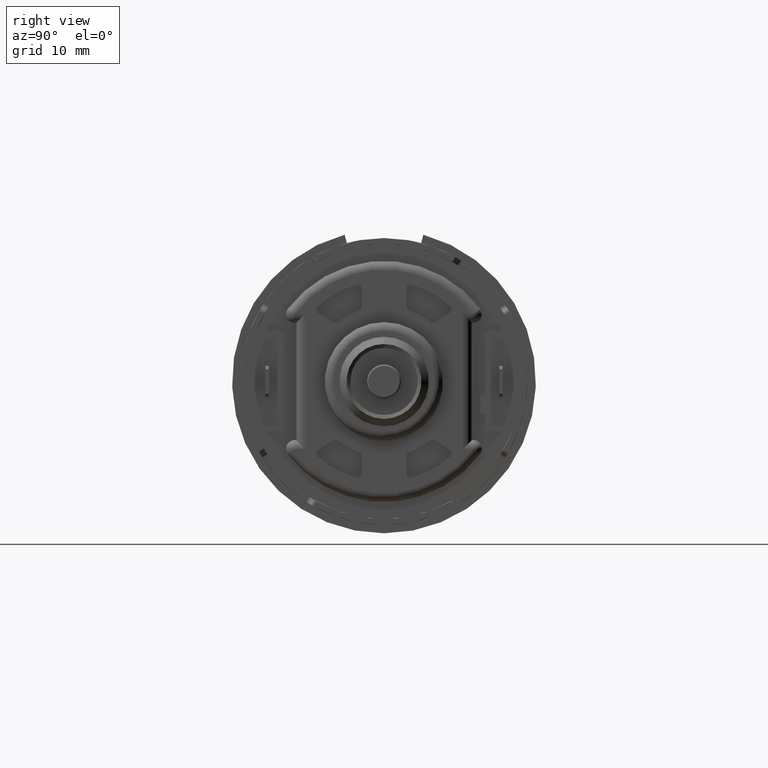
[diagram: clean part render]
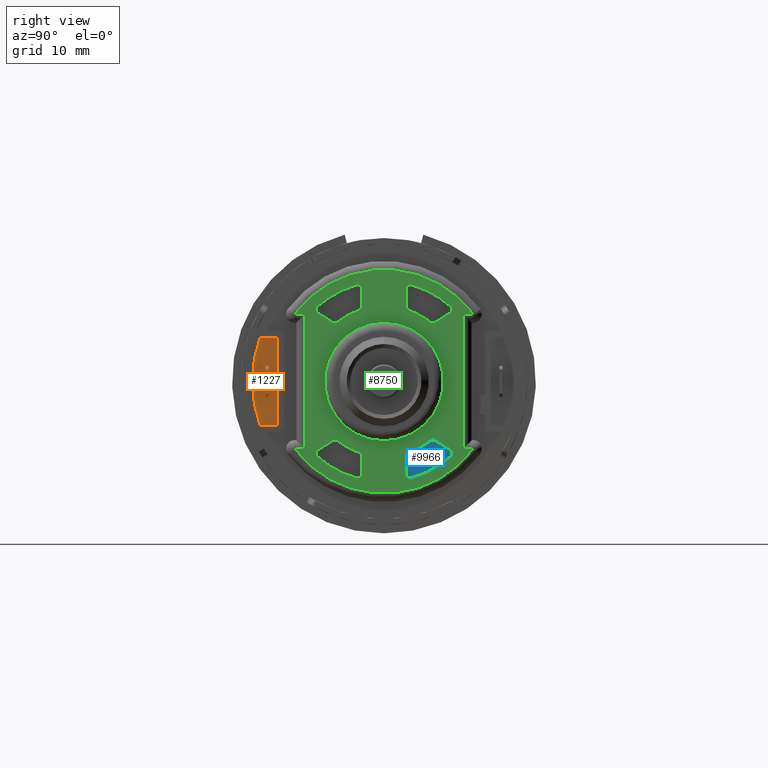
[diagram: same view with three faces highlighted in distinct colors, each labeled with its STEP entity id]
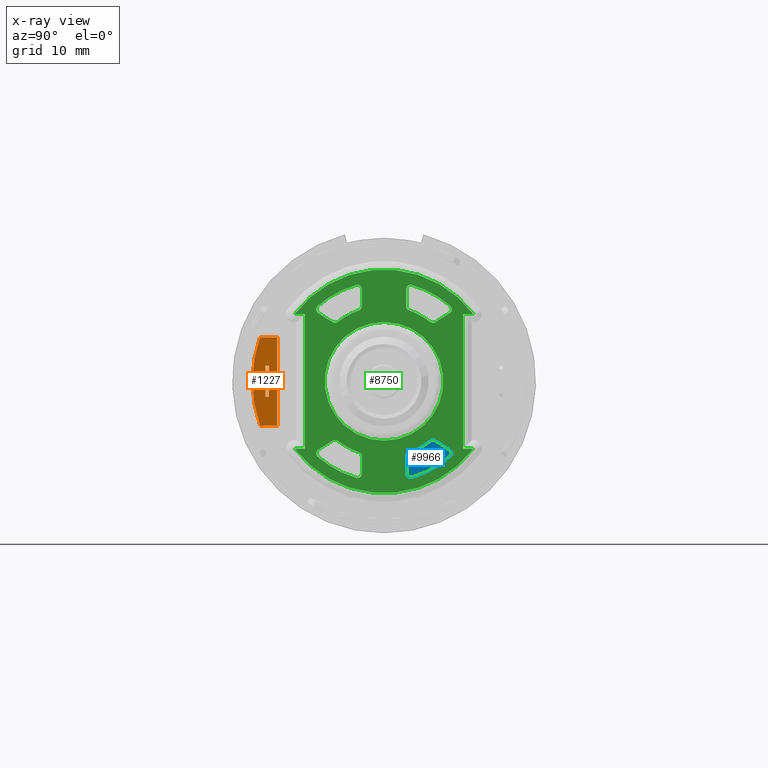
[diagram: x-ray of the same camera — body ghosted, the three highlighted faces saturated]
A machine part, right view with three faces highlighted in distinct colors.
The next image is the same camera in x-ray (body ghosted, the three faces saturated) — at least one of them is partly hidden behind the body in this view.
Their STEP definitions:

[orange] entity #1227 — the highlighted planar face has unit normal (1, 0, 0).
#197 = EDGE_LOOP ( 'NONE', ( #12373, #6555, #5790, #11497 ) ) ;
#521 = LINE ( 'NONE', #2641, #8191 ) ;
#1019 = EDGE_CURVE ( 'NONE', #2978, #3506, #10968, .T. ) ;
#1055 = AXIS2_PLACEMENT_3D ( 'NONE', #7013, #15768, #18639 ) ;
#1227 = ADVANCED_FACE ( 'NONE', ( #5372, #9189 ), #2526, .T. ) ;
#1751 = EDGE_CURVE ( 'NONE', #4273, #2978, #16839, .T. ) ;
#2526 = PLANE ( 'NONE',  #1055 ) ;
#2641 = CARTESIAN_POINT ( 'NONE',  ( 2.554125984251968351, -0.6889763779527560139, -0.09055118110236221041 ) ) ;
#2967 = LINE ( 'NONE', #10482, #6344 ) ;
#2978 = VERTEX_POINT ( 'NONE', #6181 ) ;
#3244 = CARTESIAN_POINT ( 'NONE',  ( 2.554125984251968351, -0.6889763779527560139, -0.09055118110236221041 ) ) ;
#3330 = CARTESIAN_POINT ( 'NONE',  ( 2.554125984251968351, 0.0000000000000000000, 0.0000000000000000000 ) ) ;
#3506 = VERTEX_POINT ( 'NONE', #3244 ) ;
#3526 = VECTOR ( 'NONE', #8682, 39.37007874015748143 ) ;
#3935 = VERTEX_POINT ( 'NONE', #9545 ) ;
#4110 = DIRECTION ( 'NONE',  ( 0.0000000000000000000, -1.000000000000000000, 0.0000000000000000000 ) ) ;
#4273 = VERTEX_POINT ( 'NONE', #6237 ) ;
#4274 = VERTEX_POINT ( 'NONE', #11998 ) ;
#4773 = EDGE_CURVE ( 'NONE', #5416, #3935, #2967, .T. ) ;
#4791 = DIRECTION ( 'NONE',  ( 0.0000000000000000000, 0.0000000000000000000, -1.000000000000000000 ) ) ;
#5372 = FACE_OUTER_BOUND ( 'NONE', #15995, .T. ) ;
#5387 = VECTOR ( 'NONE', #4110, 39.37007874015748143 ) ;
#5416 = VERTEX_POINT ( 'NONE', #18338 ) ;
#5619 = VECTOR ( 'NONE', #13965, 39.37007874015748143 ) ;
#5632 = VECTOR ( 'NONE', #9099, 39.37007874015748143 ) ;
#5790 = ORIENTED_EDGE ( 'NONE', *, *, #9284, .F. ) ;
#5890 = CIRCLE ( 'NONE', #12433, 0.7642125984251969539 ) ;
#6165 = ORIENTED_EDGE ( 'NONE', *, *, #10260, .T. ) ;
#6181 = CARTESIAN_POINT ( 'NONE',  ( 2.554125984251968351, -0.6889763779527560139, 0.09055118110236221041 ) ) ;
#6237 = CARTESIAN_POINT ( 'NONE',  ( 2.554125984251968351, -0.6692913385826771977, 0.09055118110236221041 ) ) ;
#6344 = VECTOR ( 'NONE', #10548, 39.37007874015748143 ) ;
#6555 = ORIENTED_EDGE ( 'NONE', *, *, #18092, .F. ) ;
#6688 = LINE ( 'NONE', #14089, #13396 ) ;
#7013 = CARTESIAN_POINT ( 'NONE',  ( 2.554125984251968351, 0.0000000000000000000, 0.0000000000000000000 ) ) ;
#7366 = LINE ( 'NONE', #14392, #3526 ) ;
#8191 = VECTOR ( 'NONE', #11163, 39.37007874015748143 ) ;
#8259 = EDGE_CURVE ( 'NONE', #4274, #5416, #6688, .T. ) ;
#8337 = CARTESIAN_POINT ( 'NONE',  ( 2.554125984251968351, -0.7200589528585775723, 0.2559999999999999498 ) ) ;
#8682 = DIRECTION ( 'NONE',  ( 0.0000000000000000000, -1.000000000000000000, -3.412798050072340335E-16 ) ) ;
#9099 = DIRECTION ( 'NONE',  ( -0.0000000000000000000, 0.0000000000000000000, 1.000000000000000000 ) ) ;
#9189 = FACE_BOUND ( 'NONE', #197, .T. ) ;
#9284 = EDGE_CURVE ( 'NONE', #3506, #11663, #521, .T. ) ;
#9535 = ORIENTED_EDGE ( 'NONE', *, *, #8259, .T. ) ;
#9545 = CARTESIAN_POINT ( 'NONE',  ( 2.554125984251968351, -0.6200000000000002176, 0.2560000000000000053 ) ) ;
#9780 = CARTESIAN_POINT ( 'NONE',  ( 2.554125984251968351, -0.6889763779527560139, 0.09055118110236221041 ) ) ;
#10260 = EDGE_CURVE ( 'NONE', #15416, #4274, #5890, .T. ) ;
#10482 = CARTESIAN_POINT ( 'NONE',  ( 2.554125984251968351, -0.6200000000000002176, -0.2559999999999998943 ) ) ;
#10548 = DIRECTION ( 'NONE',  ( 0.0000000000000000000, 0.0000000000000000000, 1.000000000000000000 ) ) ;
#10968 = LINE ( 'NONE', #14902, #5619 ) ;
#11007 = ORIENTED_EDGE ( 'NONE', *, *, #4773, .T. ) ;
#11163 = DIRECTION ( 'NONE',  ( 0.0000000000000000000, 1.000000000000000000, 0.0000000000000000000 ) ) ;
#11200 = DIRECTION ( 'NONE',  ( 0.0000000000000000000, 1.000000000000000000, 3.412798050072340335E-16 ) ) ;
#11497 = ORIENTED_EDGE ( 'NONE', *, *, #1019, .F. ) ;
#11663 = VERTEX_POINT ( 'NONE', #18659 ) ;
#11998 = CARTESIAN_POINT ( 'NONE',  ( 2.554125984251968351, -0.7200589528585775723, -0.2559999999999999498 ) ) ;
#12373 = ORIENTED_EDGE ( 'NONE', *, *, #1751, .F. ) ;
#12433 = AXIS2_PLACEMENT_3D ( 'NONE', #3330, #13370, #4791 ) ;
#13370 = DIRECTION ( 'NONE',  ( 1.000000000000000000, 0.0000000000000000000, 0.0000000000000000000 ) ) ;
#13396 = VECTOR ( 'NONE', #11200, 39.37007874015748143 ) ;
#13965 = DIRECTION ( 'NONE',  ( 0.0000000000000000000, 0.0000000000000000000, -1.000000000000000000 ) ) ;
#14089 = CARTESIAN_POINT ( 'NONE',  ( 2.554125984251968351, -0.7200589528585775723, -0.2559999999999999498 ) ) ;
#14392 = CARTESIAN_POINT ( 'NONE',  ( 2.554125984251968351, -0.6200000000000002176, 0.2560000000000000053 ) ) ;
#14902 = CARTESIAN_POINT ( 'NONE',  ( 2.554125984251968351, -0.6889763779527560139, 0.09055118110236221041 ) ) ;
#15416 = VERTEX_POINT ( 'NONE', #8337 ) ;
#15768 = DIRECTION ( 'NONE',  ( 1.000000000000000000, 0.0000000000000000000, 0.0000000000000000000 ) ) ;
#15995 = EDGE_LOOP ( 'NONE', ( #6165, #9535, #11007, #18019 ) ) ;
#16618 = LINE ( 'NONE', #17705, #5632 ) ;
#16839 = LINE ( 'NONE', #9780, #5387 ) ;
#17029 = EDGE_CURVE ( 'NONE', #3935, #15416, #7366, .T. ) ;
#17705 = CARTESIAN_POINT ( 'NONE',  ( 2.554125984251968351, -0.6692913385826771977, 0.09055118110236221041 ) ) ;
#18019 = ORIENTED_EDGE ( 'NONE', *, *, #17029, .T. ) ;
#18092 = EDGE_CURVE ( 'NONE', #11663, #4273, #16618, .T. ) ;
#18338 = CARTESIAN_POINT ( 'NONE',  ( 2.554125984251968351, -0.6200000000000002176, -0.2559999999999998943 ) ) ;
#18639 = DIRECTION ( 'NONE',  ( 0.0000000000000000000, 0.0000000000000000000, -1.000000000000000000 ) ) ;
#18659 = CARTESIAN_POINT ( 'NONE',  ( 2.554125984251968351, -0.6692913385826771977, -0.09055118110236221041 ) ) ;

[blue] entity #9966 — the highlighted planar face has unit normal (1, 0, 0).
#62 = DIRECTION ( 'NONE',  ( -1.000000000000000000, -0.0000000000000000000, -0.0000000000000000000 ) ) ;
#160 = VERTEX_POINT ( 'NONE', #8580 ) ;
#362 = ORIENTED_EDGE ( 'NONE', *, *, #12282, .T. ) ;
#484 = CARTESIAN_POINT ( 'NONE',  ( 2.546625984251968067, 0.0000000000000000000, 0.0000000000000000000 ) ) ;
#1024 = VERTEX_POINT ( 'NONE', #4709 ) ;
#1106 = EDGE_CURVE ( 'NONE', #1024, #5909, #17747, .T. ) ;
#1495 = AXIS2_PLACEMENT_3D ( 'NONE', #5822, #15834, #7270 ) ;
#1759 = CIRCLE ( 'NONE', #1495, 0.02500000000000000486 ) ;
#1925 = DIRECTION ( 'NONE',  ( 0.0000000000000000000, 0.0000000000000000000, -1.000000000000000000 ) ) ;
#2089 = CARTESIAN_POINT ( 'NONE',  ( 2.546625984251968067, 0.1540000000000000258, -0.4362959538436250173 ) ) ;
#2289 = DIRECTION ( 'NONE',  ( 1.000000000000000000, 0.0000000000000000000, 0.0000000000000000000 ) ) ;
#2294 = CARTESIAN_POINT ( 'NONE',  ( 2.546625984251968067, 0.3821980810154769204, -0.3971181136933499833 ) ) ;
#2699 = VECTOR ( 'NONE', #17165, 39.37007874015748854 ) ;
#2977 = ORIENTED_EDGE ( 'NONE', *, *, #16071, .T. ) ;
#3073 = AXIS2_PLACEMENT_3D ( 'NONE', #14667, #6102, #16107 ) ;
#3336 = CIRCLE ( 'NONE', #9278, 0.02500000000000000486 ) ;
#3667 = ORIENTED_EDGE ( 'NONE', *, *, #13194, .T. ) ;
#3836 = AXIS2_PLACEMENT_3D ( 'NONE', #10875, #2289, #12338 ) ;
#4439 = CIRCLE ( 'NONE', #3836, 0.02500000000000000486 ) ;
#4507 = DIRECTION ( 'NONE',  ( 0.0000000000000000000, 0.0000000000000000000, -1.000000000000000000 ) ) ;
#4709 = CARTESIAN_POINT ( 'NONE',  ( 2.546625984251968067, 0.1456788631722260308, -0.4127214192375407986 ) ) ;
#4813 = ORIENTED_EDGE ( 'NONE', *, *, #18379, .T. ) ;
#4941 = LINE ( 'NONE', #9380, #5386 ) ;
#5386 = VECTOR ( 'NONE', #17995, 39.37007874015748143 ) ;
#5402 = DIRECTION ( 'NONE',  ( 1.000000000000000000, 0.0000000000000000000, 0.0000000000000000000 ) ) ;
#5432 = CARTESIAN_POINT ( 'NONE',  ( 2.546625984251968067, 0.3853975292809045383, -0.4370142142419767284 ) ) ;
#5822 = CARTESIAN_POINT ( 'NONE',  ( 2.546625984251968067, 0.3688618920448656913, -0.4182639422119999173 ) ) ;
#5909 = VERTEX_POINT ( 'NONE', #8649 ) ;
#5945 = VERTEX_POINT ( 'NONE', #7289 ) ;
#6001 = ORIENTED_EDGE ( 'NONE', *, *, #7029, .T. ) ;
#6102 = DIRECTION ( 'NONE',  ( 1.000000000000000000, 0.0000000000000000000, 0.0000000000000000000 ) ) ;
#7029 = EDGE_CURVE ( 'NONE', #5909, #160, #4941, .T. ) ;
#7270 = DIRECTION ( 'NONE',  ( 0.0000000000000000000, 0.0000000000000000000, -1.000000000000000000 ) ) ;
#7289 = CARTESIAN_POINT ( 'NONE',  ( 2.546625984251968067, 0.2690006423081808817, -0.3452534656022849813 ) ) ;
#7439 = CARTESIAN_POINT ( 'NONE',  ( 2.546625984251968067, 0.2977020744078462400, -0.3438284206275273314 ) ) ;
#7642 = EDGE_CURVE ( 'NONE', #12584, #5945, #3336, .T. ) ;
#7979 = AXIS2_PLACEMENT_3D ( 'NONE', #484, #10534, #1925 ) ;
#8190 = AXIS2_PLACEMENT_3D ( 'NONE', #2089, #13235, #4507 ) ;
#8514 = AXIS2_PLACEMENT_3D ( 'NONE', #8702, #62, #10132 ) ;
#8580 = CARTESIAN_POINT ( 'NONE',  ( 2.546625984251968067, 0.1290000000000000036, -0.5359923700554340975 ) ) ;
#8649 = CARTESIAN_POINT ( 'NONE',  ( 2.546625984251968067, 0.1290000000000000036, -0.4362959538436250173 ) ) ;
#8702 = CARTESIAN_POINT ( 'NONE',  ( 2.546625984251968067, 0.0000000000000000000, 0.0000000000000000000 ) ) ;
#9278 = AXIS2_PLACEMENT_3D ( 'NONE', #14001, #5402, #15417 ) ;
#9380 = CARTESIAN_POINT ( 'NONE',  ( 2.546625984251968067, 0.1290000000000000036, -0.5682179854821192144 ) ) ;
#9966 = ADVANCED_FACE ( 'NONE', ( #11024 ), #13325, .T. ) ;
#10132 = DIRECTION ( 'NONE',  ( 0.0000000000000000000, 0.0000000000000000000, -1.000000000000000000 ) ) ;
#10534 = DIRECTION ( 'NONE',  ( 1.000000000000000000, 0.0000000000000000000, 0.0000000000000000000 ) ) ;
#10875 = CARTESIAN_POINT ( 'NONE',  ( 2.546625984251968067, 0.1540000000000000258, -0.5359923700554340975 ) ) ;
#11024 = FACE_OUTER_BOUND ( 'NONE', #16454, .T. ) ;
#12152 = VERTEX_POINT ( 'NONE', #5432 ) ;
#12282 = EDGE_CURVE ( 'NONE', #12152, #18231, #1759, .T. ) ;
#12332 = CIRCLE ( 'NONE', #8514, 0.4376771653543305995 ) ;
#12338 = DIRECTION ( 'NONE',  ( 0.0000000000000000000, 0.0000000000000000000, -1.000000000000000000 ) ) ;
#12584 = VERTEX_POINT ( 'NONE', #7439 ) ;
#12661 = CARTESIAN_POINT ( 'NONE',  ( 2.546625984251968067, 0.1609036357218496249, -0.5600202666304571197 ) ) ;
#12855 = ORIENTED_EDGE ( 'NONE', *, *, #1106, .T. ) ;
#12907 = ORIENTED_EDGE ( 'NONE', *, *, #17953, .T. ) ;
#13194 = EDGE_CURVE ( 'NONE', #160, #15435, #4439, .T. ) ;
#13235 = DIRECTION ( 'NONE',  ( 1.000000000000000000, 0.0000000000000000000, 0.0000000000000000000 ) ) ;
#13325 = PLANE ( 'NONE',  #7979 ) ;
#13423 = CIRCLE ( 'NONE', #3073, 0.5826771653543305618 ) ;
#14001 = CARTESIAN_POINT ( 'NONE',  ( 2.546625984251968067, 0.2843658854372350109, -0.3649742491461772098 ) ) ;
#14667 = CARTESIAN_POINT ( 'NONE',  ( 2.546625984251968067, 0.0000000000000000000, 0.0000000000000000000 ) ) ;
#15417 = DIRECTION ( 'NONE',  ( 0.0000000000000000000, 0.0000000000000000000, -1.000000000000000000 ) ) ;
#15435 = VERTEX_POINT ( 'NONE', #12661 ) ;
#15615 = CARTESIAN_POINT ( 'NONE',  ( 2.546625984251968067, 0.2825386404800855344, -0.3342651906918622240 ) ) ;
#15834 = DIRECTION ( 'NONE',  ( 1.000000000000000000, 0.0000000000000000000, 0.0000000000000000000 ) ) ;
#15906 = ORIENTED_EDGE ( 'NONE', *, *, #7642, .T. ) ;
#16071 = EDGE_CURVE ( 'NONE', #15435, #12152, #13423, .T. ) ;
#16107 = DIRECTION ( 'NONE',  ( 0.0000000000000000000, 0.0000000000000000000, -1.000000000000000000 ) ) ;
#16454 = EDGE_LOOP ( 'NONE', ( #2977, #362, #12907, #15906, #4813, #12855, #6001, #3667 ) ) ;
#17165 = DIRECTION ( 'NONE',  ( -0.0000000000000000000, -0.8458331407459969142, 0.5334475588244477207 ) ) ;
#17537 = LINE ( 'NONE', #15615, #2699 ) ;
#17747 = CIRCLE ( 'NONE', #8190, 0.02500000000000000486 ) ;
#17953 = EDGE_CURVE ( 'NONE', #18231, #12584, #17537, .T. ) ;
#17995 = DIRECTION ( 'NONE',  ( -0.0000000000000000000, -0.0000000000000000000, -1.000000000000000000 ) ) ;
#18231 = VERTEX_POINT ( 'NONE', #2294 ) ;
#18379 = EDGE_CURVE ( 'NONE', #5945, #1024, #12332, .T. ) ;

[green] entity #8750 — the highlighted planar face has unit normal (1, 0, 0).
#31 = VERTEX_POINT ( 'NONE', #13438 ) ;
#55 = CARTESIAN_POINT ( 'NONE',  ( 2.609125984251968067, 0.0000000000000000000, 0.0000000000000000000 ) ) ;
#275 = CARTESIAN_POINT ( 'NONE',  ( 2.609125984251968067, -0.3853975292809045383, -0.4370142142419767284 ) ) ;
#307 = VERTEX_POINT ( 'NONE', #6961 ) ;
#347 = CARTESIAN_POINT ( 'NONE',  ( 2.609125984251968067, -0.1290000000000000036, -0.5682179854821192144 ) ) ;
#413 = LINE ( 'NONE', #12369, #14805 ) ;
#479 = ORIENTED_EDGE ( 'NONE', *, *, #9291, .T. ) ;
#483 = VERTEX_POINT ( 'NONE', #7512 ) ;
#499 = CARTESIAN_POINT ( 'NONE',  ( 2.609125984251968067, 0.1540000000000000258, 0.4362959538436250173 ) ) ;
#503 = CARTESIAN_POINT ( 'NONE',  ( 2.609125984251968067, 0.3853975292809045383, -0.4370142142419767284 ) ) ;
#535 = FACE_BOUND ( 'NONE', #6450, .T. ) ;
#580 = VECTOR ( 'NONE', #5667, 39.37007874015748143 ) ;
#633 = VECTOR ( 'NONE', #18506, 39.37007874015748143 ) ;
#646 = DIRECTION ( 'NONE',  ( -1.000000000000000000, -0.0000000000000000000, -0.0000000000000000000 ) ) ;
#816 = VERTEX_POINT ( 'NONE', #275 ) ;
#896 = EDGE_CURVE ( 'NONE', #4043, #16002, #8303, .T. ) ;
#1166 = CARTESIAN_POINT ( 'NONE',  ( 2.609125984251968067, 0.4600000000000001310, 0.3409999999999999698 ) ) ;
#1225 = DIRECTION ( 'NONE',  ( 0.0000000000000000000, -1.365923996832131412E-15, -1.000000000000000000 ) ) ;
#1444 = DIRECTION ( 'NONE',  ( -1.000000000000000000, -0.0000000000000000000, -0.0000000000000000000 ) ) ;
#1505 = DIRECTION ( 'NONE',  ( 0.0000000000000000000, 0.0000000000000000000, -1.000000000000000000 ) ) ;
#1514 = VERTEX_POINT ( 'NONE', #12307 ) ;
#1561 = VERTEX_POINT ( 'NONE', #15170 ) ;
#1590 = EDGE_CURVE ( 'NONE', #13617, #12071, #413, .T. ) ;
#1594 = ORIENTED_EDGE ( 'NONE', *, *, #11191, .T. ) ;
#1628 = ORIENTED_EDGE ( 'NONE', *, *, #7783, .T. ) ;
#1683 = VERTEX_POINT ( 'NONE', #4035 ) ;
#1692 = CARTESIAN_POINT ( 'NONE',  ( 2.609125984251968067, 0.2825386404800855344, -0.3342651906918622240 ) ) ;
#1732 = VERTEX_POINT ( 'NONE', #18414 ) ;
#1752 = EDGE_CURVE ( 'NONE', #11839, #1514, #9207, .T. ) ;
#1904 = AXIS2_PLACEMENT_3D ( 'NONE', #5689, #15707, #7138 ) ;
#1945 = DIRECTION ( 'NONE',  ( 0.0000000000000000000, 0.0000000000000000000, -1.000000000000000000 ) ) ;
#1973 = CIRCLE ( 'NONE', #8078, 0.02500000000000000486 ) ;
#2036 = VERTEX_POINT ( 'NONE', #3324 ) ;
#2175 = CIRCLE ( 'NONE', #10249, 0.02500000000000000486 ) ;
#2219 = CIRCLE ( 'NONE', #18262, 0.5826771653543305618 ) ;
#2290 = EDGE_CURVE ( 'NONE', #16759, #15057, #1973, .T. ) ;
#2319 = DIRECTION ( 'NONE',  ( 0.0000000000000000000, -1.000000000000000000, -6.740270365654506556E-16 ) ) ;
#2321 = DIRECTION ( 'NONE',  ( 1.000000000000000000, 0.0000000000000000000, 0.0000000000000000000 ) ) ;
#2341 = CARTESIAN_POINT ( 'NONE',  ( 2.609125984251968067, -0.5192484954239153794, -0.3910000000000000142 ) ) ;
#2380 = CARTESIAN_POINT ( 'NONE',  ( 2.609125984251968067, -0.1540000000000000258, 0.4362959538436250173 ) ) ;
#2393 = ORIENTED_EDGE ( 'NONE', *, *, #9918, .T. ) ;
#2406 = EDGE_CURVE ( 'NONE', #7956, #14628, #3575, .T. ) ;
#2415 = ORIENTED_EDGE ( 'NONE', *, *, #896, .F. ) ;
#2424 = EDGE_CURVE ( 'NONE', #1561, #13149, #3123, .T. ) ;
#2493 = ORIENTED_EDGE ( 'NONE', *, *, #1590, .T. ) ;
#2625 = EDGE_CURVE ( 'NONE', #4043, #5094, #2175, .T. ) ;
#2816 = CIRCLE ( 'NONE', #17135, 0.5826771653543305618 ) ;
#2927 = DIRECTION ( 'NONE',  ( 1.000000000000000000, 0.0000000000000000000, 0.0000000000000000000 ) ) ;
#3118 = ORIENTED_EDGE ( 'NONE', *, *, #2424, .T. ) ;
#3123 = CIRCLE ( 'NONE', #17726, 0.02500000000000000486 ) ;
#3168 = DIRECTION ( 'NONE',  ( -0.0000000000000000000, -0.8458331407459969142, 0.5334475588244477207 ) ) ;
#3247 = ORIENTED_EDGE ( 'NONE', *, *, #14881, .F. ) ;
#3324 = CARTESIAN_POINT ( 'NONE',  ( 2.609125984251968067, 0.5192484954239153794, -0.3910000000000000142 ) ) ;
#3345 = ORIENTED_EDGE ( 'NONE', *, *, #6279, .F. ) ;
#3363 = CIRCLE ( 'NONE', #4886, 0.4376771653543305995 ) ;
#3503 = CARTESIAN_POINT ( 'NONE',  ( 2.609125984251968067, 0.3821980810154769204, -0.3971181136933499833 ) ) ;
#3543 = ORIENTED_EDGE ( 'NONE', *, *, #14547, .F. ) ;
#3575 = CIRCLE ( 'NONE', #16748, 0.02500000000000000486 ) ;
#3651 = CIRCLE ( 'NONE', #6433, 0.02500000000000000486 ) ;
#3663 = CARTESIAN_POINT ( 'NONE',  ( 2.609125984251968067, 0.2843658854372350109, 0.3649742491461772098 ) ) ;
#3686 = CARTESIAN_POINT ( 'NONE',  ( 2.609125984251968067, 0.0000000000000000000, 0.0000000000000000000 ) ) ;
#3688 = DIRECTION ( 'NONE',  ( -1.000000000000000000, -0.0000000000000000000, -0.0000000000000000000 ) ) ;
#3712 = EDGE_CURVE ( 'NONE', #9812, #307, #15157, .T. ) ;
#3726 = CARTESIAN_POINT ( 'NONE',  ( 2.609125984251968067, 0.0000000000000000000, 0.0000000000000000000 ) ) ;
#3727 = CARTESIAN_POINT ( 'NONE',  ( 2.609125984251968067, 0.3688618920448656913, -0.4182639422119999173 ) ) ;
#3756 = ORIENTED_EDGE ( 'NONE', *, *, #5942, .T. ) ;
#3759 = CARTESIAN_POINT ( 'NONE',  ( 2.609125984251968067, -0.1540000000000000258, 0.5359923700554340975 ) ) ;
#3793 = VECTOR ( 'NONE', #6276, 39.37007874015748854 ) ;
#3838 = DIRECTION ( 'NONE',  ( 0.0000000000000000000, -1.365923996832131412E-15, -1.000000000000000000 ) ) ;
#3859 = LINE ( 'NONE', #347, #7249 ) ;
#3899 = VERTEX_POINT ( 'NONE', #7681 ) ;
#3933 = VECTOR ( 'NONE', #4112, 39.37007874015748854 ) ;
#3949 = FACE_BOUND ( 'NONE', #13472, .T. ) ;
#3999 = VERTEX_POINT ( 'NONE', #8228 ) ;
#4035 = CARTESIAN_POINT ( 'NONE',  ( 2.609125984251968067, 0.3821980810154769204, 0.3971181136933499833 ) ) ;
#4038 = AXIS2_PLACEMENT_3D ( 'NONE', #12867, #4285, #14288 ) ;
#4043 = VERTEX_POINT ( 'NONE', #7074 ) ;
#4112 = DIRECTION ( 'NONE',  ( 0.0000000000000000000, 0.8458331407459969142, -0.5334475588244477207 ) ) ;
#4125 = VERTEX_POINT ( 'NONE', #14441 ) ;
#4264 = VERTEX_POINT ( 'NONE', #17718 ) ;
#4275 = LINE ( 'NONE', #4833, #3793 ) ;
#4285 = DIRECTION ( 'NONE',  ( -1.000000000000000000, -0.0000000000000000000, -0.0000000000000000000 ) ) ;
#4326 = CARTESIAN_POINT ( 'NONE',  ( 2.609125984251968067, 0.6113256088207003058, 0.3910000000000000142 ) ) ;
#4340 = ORIENTED_EDGE ( 'NONE', *, *, #4894, .T. ) ;
#4384 = CARTESIAN_POINT ( 'NONE',  ( 2.609125984251968067, 0.0000000000000000000, 0.0000000000000000000 ) ) ;
#4401 = CARTESIAN_POINT ( 'NONE',  ( 2.609125984251968067, 0.5100000000000001199, -0.3910000000000000142 ) ) ;
#4404 = LINE ( 'NONE', #8425, #3933 ) ;
#4425 = FACE_OUTER_BOUND ( 'NONE', #5781, .T. ) ;
#4498 = DIRECTION ( 'NONE',  ( -1.000000000000000000, -0.0000000000000000000, -0.0000000000000000000 ) ) ;
#4627 = CIRCLE ( 'NONE', #8454, 0.4376771653543305995 ) ;
#4642 = CARTESIAN_POINT ( 'NONE',  ( 2.609125984251968067, 0.4600000000000001310, -0.3910000000000000142 ) ) ;
#4833 = CARTESIAN_POINT ( 'NONE',  ( 2.609125984251968067, 0.2825386404800855344, 0.3342651906918622240 ) ) ;
#4886 = AXIS2_PLACEMENT_3D ( 'NONE', #4384, #14397, #5819 ) ;
#4894 = EDGE_CURVE ( 'NONE', #11242, #8828, #16884, .T. ) ;
#4898 = ORIENTED_EDGE ( 'NONE', *, *, #14462, .T. ) ;
#4919 = EDGE_CURVE ( 'NONE', #5362, #13617, #16420, .T. ) ;
#5000 = EDGE_CURVE ( 'NONE', #483, #1561, #18006, .T. ) ;
#5052 = CARTESIAN_POINT ( 'NONE',  ( 2.609125984251968067, 0.0000000000000000000, 0.0000000000000000000 ) ) ;
#5094 = VERTEX_POINT ( 'NONE', #7075 ) ;
#5103 = DIRECTION ( 'NONE',  ( 0.0000000000000000000, -4.097771990496393842E-15, -1.000000000000000000 ) ) ;
#5128 = DIRECTION ( 'NONE',  ( 0.0000000000000000000, 0.0000000000000000000, 1.000000000000000000 ) ) ;
#5179 = DIRECTION ( 'NONE',  ( 0.0000000000000000000, 0.0000000000000000000, 1.000000000000000000 ) ) ;
#5180 = DIRECTION ( 'NONE',  ( 0.0000000000000000000, 0.0000000000000000000, -1.000000000000000000 ) ) ;
#5218 = DIRECTION ( 'NONE',  ( 0.0000000000000000000, 0.0000000000000000000, -1.000000000000000000 ) ) ;
#5223 = DIRECTION ( 'NONE',  ( -1.000000000000000000, 0.0000000000000000000, 0.0000000000000000000 ) ) ;
#5228 = ORIENTED_EDGE ( 'NONE', *, *, #4919, .T. ) ;
#5303 = DIRECTION ( 'NONE',  ( -1.000000000000000000, -0.0000000000000000000, -0.0000000000000000000 ) ) ;
#5362 = VERTEX_POINT ( 'NONE', #9531 ) ;
#5667 = DIRECTION ( 'NONE',  ( 0.0000000000000000000, 1.000000000000000000, -0.0000000000000000000 ) ) ;
#5689 = CARTESIAN_POINT ( 'NONE',  ( 2.609125984251968067, 0.3688618920448656913, 0.4182639422119999173 ) ) ;
#5781 = EDGE_LOOP ( 'NONE', ( #4898, #16131, #1628, #5228, #2493, #7278, #3756, #13979 ) ) ;
#5809 = CIRCLE ( 'NONE', #7459, 0.4376771653543305995 ) ;
#5819 = DIRECTION ( 'NONE',  ( 0.0000000000000000000, 0.0000000000000000000, -1.000000000000000000 ) ) ;
#5846 = DIRECTION ( 'NONE',  ( 0.0000000000000000000, -1.000000000000000000, 6.740270365654506556E-16 ) ) ;
#5888 = ORIENTED_EDGE ( 'NONE', *, *, #9717, .T. ) ;
#5937 = DIRECTION ( 'NONE',  ( 1.000000000000000000, 0.0000000000000000000, 0.0000000000000000000 ) ) ;
#5942 = EDGE_CURVE ( 'NONE', #2036, #11839, #13259, .T. ) ;
#5951 = CARTESIAN_POINT ( 'NONE',  ( 2.609125984251968067, 0.5192484954239154904, 0.3910000000000000142 ) ) ;
#6026 = DIRECTION ( 'NONE',  ( -1.000000000000000000, -0.0000000000000000000, -0.0000000000000000000 ) ) ;
#6065 = VERTEX_POINT ( 'NONE', #503 ) ;
#6134 = CARTESIAN_POINT ( 'NONE',  ( 2.609125984251968067, -0.1290000000000000036, -0.4362959538436250173 ) ) ;
#6147 = CIRCLE ( 'NONE', #7508, 0.3444881889763780070 ) ;
#6276 = DIRECTION ( 'NONE',  ( 0.0000000000000000000, -0.8458331407459969142, -0.5334475588244477207 ) ) ;
#6279 = EDGE_CURVE ( 'NONE', #4264, #14798, #12793, .T. ) ;
#6353 = CIRCLE ( 'NONE', #17140, 0.02500000000000000486 ) ;
#6433 = AXIS2_PLACEMENT_3D ( 'NONE', #8497, #18569, #9935 ) ;
#6450 = EDGE_LOOP ( 'NONE', ( #15181, #5888, #3247, #16015, #8015, #9866, #3543, #17220 ) ) ;
#6495 = CARTESIAN_POINT ( 'NONE',  ( 2.609125984251968067, -0.3853975292809045383, 0.4370142142419767284 ) ) ;
#6551 = AXIS2_PLACEMENT_3D ( 'NONE', #10059, #1444, #11500 ) ;
#6582 = PLANE ( 'NONE',  #16491 ) ;
#6595 = CARTESIAN_POINT ( 'NONE',  ( 2.609125984251968067, -0.2843658854372350109, -0.3649742491461772098 ) ) ;
#6625 = DIRECTION ( 'NONE',  ( -1.000000000000000000, -0.0000000000000000000, -0.0000000000000000000 ) ) ;
#6647 = DIRECTION ( 'NONE',  ( 1.000000000000000000, 0.0000000000000000000, 0.0000000000000000000 ) ) ;
#6676 = EDGE_CURVE ( 'NONE', #18135, #6065, #12771, .T. ) ;
#6791 = ORIENTED_EDGE ( 'NONE', *, *, #10382, .T. ) ;
#6961 = CARTESIAN_POINT ( 'NONE',  ( 2.609125984251968067, -0.5192484954239153794, 0.3910000000000000142 ) ) ;
#7008 = DIRECTION ( 'NONE',  ( 0.0000000000000000000, 0.8458331407459969142, 0.5334475588244477207 ) ) ;
#7024 = ORIENTED_EDGE ( 'NONE', *, *, #12033, .T. ) ;
#7074 = CARTESIAN_POINT ( 'NONE',  ( 2.609125984251968067, -0.1290000000000000036, 0.4362959538436250173 ) ) ;
#7075 = CARTESIAN_POINT ( 'NONE',  ( 2.609125984251968067, -0.1456788631722260308, 0.4127214192375407986 ) ) ;
#7091 = EDGE_CURVE ( 'NONE', #816, #483, #17524, .T. ) ;
#7138 = DIRECTION ( 'NONE',  ( 0.0000000000000000000, -2.731847993664262824E-15, -1.000000000000000000 ) ) ;
#7153 = AXIS2_PLACEMENT_3D ( 'NONE', #18489, #9844, #1225 ) ;
#7173 = EDGE_CURVE ( 'NONE', #8828, #1683, #15697, .T. ) ;
#7249 = VECTOR ( 'NONE', #11880, 39.37007874015748143 ) ;
#7269 = ORIENTED_EDGE ( 'NONE', *, *, #17312, .T. ) ;
#7278 = ORIENTED_EDGE ( 'NONE', *, *, #10192, .T. ) ;
#7399 = CARTESIAN_POINT ( 'NONE',  ( 2.609125984251968067, 0.1290000000000000036, 0.5359923700554340975 ) ) ;
#7450 = CARTESIAN_POINT ( 'NONE',  ( 2.609125984251968067, 0.1609036357218496249, 0.5600202666304571197 ) ) ;
#7459 = AXIS2_PLACEMENT_3D ( 'NONE', #13804, #5223, #15221 ) ;
#7497 = ORIENTED_EDGE ( 'NONE', *, *, #16151, .T. ) ;
#7508 = AXIS2_PLACEMENT_3D ( 'NONE', #16138, #7557, #17618 ) ;
#7512 = CARTESIAN_POINT ( 'NONE',  ( 2.609125984251968067, -0.3821980810154769204, -0.3971181136933499833 ) ) ;
#7533 = CARTESIAN_POINT ( 'NONE',  ( 2.609125984251968067, 0.1290000000000000036, -0.4362959538436250173 ) ) ;
#7557 = DIRECTION ( 'NONE',  ( -1.000000000000000000, -0.0000000000000000000, -0.0000000000000000000 ) ) ;
#7649 = ORIENTED_EDGE ( 'NONE', *, *, #16688, .T. ) ;
#7681 = CARTESIAN_POINT ( 'NONE',  ( 2.609125984251968067, 0.1290000000000000036, -0.5359923700554340975 ) ) ;
#7709 = ORIENTED_EDGE ( 'NONE', *, *, #2290, .T. ) ;
#7721 = ORIENTED_EDGE ( 'NONE', *, *, #7173, .T. ) ;
#7752 = FACE_BOUND ( 'NONE', #18422, .T. ) ;
#7765 = AXIS2_PLACEMENT_3D ( 'NONE', #3727, #13771, #5180 ) ;
#7783 = EDGE_CURVE ( 'NONE', #307, #5362, #11627, .T. ) ;
#7887 = LINE ( 'NONE', #8105, #11717 ) ;
#7919 = DIRECTION ( 'NONE',  ( -0.0000000000000000000, -0.0000000000000000000, 1.000000000000000000 ) ) ;
#7956 = VERTEX_POINT ( 'NONE', #7533 ) ;
#7999 = DIRECTION ( 'NONE',  ( 0.0000000000000000000, 1.365923996832131412E-15, -1.000000000000000000 ) ) ;
#8015 = ORIENTED_EDGE ( 'NONE', *, *, #8906, .F. ) ;
#8051 = CARTESIAN_POINT ( 'NONE',  ( 2.609125984251968067, -0.2690006423081808817, 0.3452534656022849813 ) ) ;
#8078 = AXIS2_PLACEMENT_3D ( 'NONE', #14600, #6026, #16048 ) ;
#8105 = CARTESIAN_POINT ( 'NONE',  ( 2.609125984251968067, 0.1290000000000000036, -0.5682179854821192144 ) ) ;
#8112 = DIRECTION ( 'NONE',  ( 0.0000000000000000000, 0.0000000000000000000, -1.000000000000000000 ) ) ;
#8228 = CARTESIAN_POINT ( 'NONE',  ( 2.609125984251968067, 0.1456788631722260308, 0.4127214192375407986 ) ) ;
#8243 = DIRECTION ( 'NONE',  ( 0.0000000000000000000, 0.0000000000000000000, -1.000000000000000000 ) ) ;
#8278 = CARTESIAN_POINT ( 'NONE',  ( 2.609125984251968067, -0.1290000000000000036, 0.5682179854821192144 ) ) ;
#8303 = LINE ( 'NONE', #8278, #633 ) ;
#8425 = CARTESIAN_POINT ( 'NONE',  ( 2.609125984251968067, -0.2825386404800855344, 0.3342651906918622240 ) ) ;
#8454 = AXIS2_PLACEMENT_3D ( 'NONE', #13092, #4498, #14510 ) ;
#8485 = ORIENTED_EDGE ( 'NONE', *, *, #8875, .T. ) ;
#8497 = CARTESIAN_POINT ( 'NONE',  ( 2.609125984251968067, 0.1540000000000000258, -0.5359923700554340975 ) ) ;
#8638 = DIRECTION ( 'NONE',  ( 0.0000000000000000000, 1.000000000000000000, -0.0000000000000000000 ) ) ;
#8650 = ORIENTED_EDGE ( 'NONE', *, *, #14821, .T. ) ;
#8694 = ORIENTED_EDGE ( 'NONE', *, *, #14575, .T. ) ;
#8750 = ADVANCED_FACE ( 'NONE', ( #15373, #535, #4425, #11566, #7752, #3949 ), #6582, .T. ) ;
#8828 = VERTEX_POINT ( 'NONE', #18514 ) ;
#8875 = EDGE_CURVE ( 'NONE', #16380, #14318, #13150, .T. ) ;
#8906 = EDGE_CURVE ( 'NONE', #13455, #14628, #4627, .T. ) ;
#8926 = CARTESIAN_POINT ( 'NONE',  ( 2.609125984251968067, 0.2977020744078462400, 0.3438284206275273314 ) ) ;
#8996 = CIRCLE ( 'NONE', #17655, 0.4376771653543305995 ) ;
#9179 = EDGE_CURVE ( 'NONE', #11657, #6065, #2816, .T. ) ;
#9191 = AXIS2_PLACEMENT_3D ( 'NONE', #3759, #13798, #5218 ) ;
#9207 = LINE ( 'NONE', #1166, #16377 ) ;
#9287 = CARTESIAN_POINT ( 'NONE',  ( 2.609125984251968067, 0.2843658854372350109, -0.3649742491461772098 ) ) ;
#9291 = EDGE_CURVE ( 'NONE', #1732, #17144, #12016, .T. ) ;
#9301 = CARTESIAN_POINT ( 'NONE',  ( 2.609125984251968067, -0.4600000000000001310, -0.3910000000000000142 ) ) ;
#9302 = EDGE_CURVE ( 'NONE', #4125, #15057, #4404, .T. ) ;
#9317 = AXIS2_PLACEMENT_3D ( 'NONE', #3726, #13770, #5179 ) ;
#9531 = CARTESIAN_POINT ( 'NONE',  ( 2.609125984251968067, -0.4600000000000001310, 0.3910000000000000142 ) ) ;
#9684 = ORIENTED_EDGE ( 'NONE', *, *, #2625, .T. ) ;
#9690 = VECTOR ( 'NONE', #7919, 39.37007874015748143 ) ;
#9717 = EDGE_CURVE ( 'NONE', #11657, #3899, #3651, .T. ) ;
#9812 = VERTEX_POINT ( 'NONE', #5951 ) ;
#9844 = DIRECTION ( 'NONE',  ( -1.000000000000000000, -0.0000000000000000000, -0.0000000000000000000 ) ) ;
#9866 = ORIENTED_EDGE ( 'NONE', *, *, #15276, .T. ) ;
#9918 = EDGE_CURVE ( 'NONE', #17144, #16380, #3859, .T. ) ;
#9935 = DIRECTION ( 'NONE',  ( 0.0000000000000000000, 0.0000000000000000000, -1.000000000000000000 ) ) ;
#10002 = CARTESIAN_POINT ( 'NONE',  ( 2.609125984251968067, 0.2690006423081808817, -0.3452534656022849813 ) ) ;
#10059 = CARTESIAN_POINT ( 'NONE',  ( 2.609125984251968067, -0.1540000000000000258, -0.5359923700554340975 ) ) ;
#10117 = CIRCLE ( 'NONE', #11464, 0.6499999999999999112 ) ;
#10123 = DIRECTION ( 'NONE',  ( -1.000000000000000000, -0.0000000000000000000, -0.0000000000000000000 ) ) ;
#10137 = AXIS2_PLACEMENT_3D ( 'NONE', #11510, #2927, #12967 ) ;
#10138 = LINE ( 'NONE', #10791, #9690 ) ;
#10156 = CARTESIAN_POINT ( 'NONE',  ( 2.609125984251968067, -0.1290000000000000036, 0.5359923700554340975 ) ) ;
#10166 = VECTOR ( 'NONE', #8638, 39.37007874015748143 ) ;
#10192 = EDGE_CURVE ( 'NONE', #12071, #2036, #10117, .T. ) ;
#10249 = AXIS2_PLACEMENT_3D ( 'NONE', #2380, #12431, #3838 ) ;
#10349 = VECTOR ( 'NONE', #7008, 39.37007874015748854 ) ;
#10382 = EDGE_CURVE ( 'NONE', #4264, #16002, #13506, .T. ) ;
#10554 = DIRECTION ( 'NONE',  ( -1.000000000000000000, -0.0000000000000000000, -0.0000000000000000000 ) ) ;
#10641 = EDGE_CURVE ( 'NONE', #4125, #14798, #13733, .T. ) ;
#10702 = DIRECTION ( 'NONE',  ( 0.0000000000000000000, 1.365923996832131412E-15, -1.000000000000000000 ) ) ;
#10791 = CARTESIAN_POINT ( 'NONE',  ( 2.609125984251968067, 0.1290000000000000036, 0.5682179854821192144 ) ) ;
#10906 = CARTESIAN_POINT ( 'NONE',  ( 2.609125984251968067, 0.0000000000000000000, 0.0000000000000000000 ) ) ;
#10930 = CARTESIAN_POINT ( 'NONE',  ( 2.609125984251968067, -0.1290000000000000036, -0.5359923700554340975 ) ) ;
#11060 = CARTESIAN_POINT ( 'NONE',  ( 2.609125984251968067, -0.1609036357218496249, -0.5600202666304571197 ) ) ;
#11191 = EDGE_CURVE ( 'NONE', #13149, #1732, #3363, .T. ) ;
#11242 = VERTEX_POINT ( 'NONE', #7450 ) ;
#11290 = VERTEX_POINT ( 'NONE', #8926 ) ;
#11404 = VERTEX_POINT ( 'NONE', #17800 ) ;
#11464 = AXIS2_PLACEMENT_3D ( 'NONE', #14492, #5937, #15941 ) ;
#11500 = DIRECTION ( 'NONE',  ( 0.0000000000000000000, 0.0000000000000000000, -1.000000000000000000 ) ) ;
#11510 = CARTESIAN_POINT ( 'NONE',  ( 2.609125984251968067, 0.0000000000000000000, 0.0000000000000000000 ) ) ;
#11566 = FACE_BOUND ( 'NONE', #12873, .T. ) ;
#11576 = CIRCLE ( 'NONE', #13788, 0.02500000000000000486 ) ;
#11627 = LINE ( 'NONE', #15679, #580 ) ;
#11657 = VERTEX_POINT ( 'NONE', #17207 ) ;
#11717 = VECTOR ( 'NONE', #16714, 39.37007874015748143 ) ;
#11839 = VERTEX_POINT ( 'NONE', #4642 ) ;
#11880 = DIRECTION ( 'NONE',  ( -0.0000000000000000000, 0.0000000000000000000, -1.000000000000000000 ) ) ;
#11988 = AXIS2_PLACEMENT_3D ( 'NONE', #499, #10554, #1945 ) ;
#12016 = CIRCLE ( 'NONE', #7153, 0.02500000000000000486 ) ;
#12033 = EDGE_CURVE ( 'NONE', #11404, #3999, #8996, .T. ) ;
#12071 = VERTEX_POINT ( 'NONE', #2341 ) ;
#12184 = LINE ( 'NONE', #1692, #13754 ) ;
#12267 = CARTESIAN_POINT ( 'NONE',  ( 2.609125984251968067, 0.1540000000000000258, -0.4362959538436250173 ) ) ;
#12300 = EDGE_CURVE ( 'NONE', #14318, #816, #2219, .T. ) ;
#12305 = ORIENTED_EDGE ( 'NONE', *, *, #7091, .T. ) ;
#12307 = CARTESIAN_POINT ( 'NONE',  ( 2.609125984251968067, 0.4600000000000001310, 0.3910000000000000142 ) ) ;
#12343 = CARTESIAN_POINT ( 'NONE',  ( 2.609125984251968067, 0.1290000000000000036, 0.4362959538436250173 ) ) ;
#12369 = CARTESIAN_POINT ( 'NONE',  ( 2.609125984251968067, -0.6113256088207003058, -0.3910000000000000697 ) ) ;
#12371 = DIRECTION ( 'NONE',  ( 0.0000000000000000000, 0.0000000000000000000, -1.000000000000000000 ) ) ;
#12431 = DIRECTION ( 'NONE',  ( -1.000000000000000000, -0.0000000000000000000, -0.0000000000000000000 ) ) ;
#12483 = ORIENTED_EDGE ( 'NONE', *, *, #12849, .F. ) ;
#12539 = AXIS2_PLACEMENT_3D ( 'NONE', #9287, #646, #10702 ) ;
#12602 = VECTOR ( 'NONE', #8112, 39.37007874015748143 ) ;
#12771 = CIRCLE ( 'NONE', #7765, 0.02500000000000000486 ) ;
#12793 = CIRCLE ( 'NONE', #16186, 0.5826771653543305618 ) ;
#12814 = VECTOR ( 'NONE', #5846, 39.37007874015748143 ) ;
#12849 = EDGE_CURVE ( 'NONE', #16759, #5094, #5809, .T. ) ;
#12867 = CARTESIAN_POINT ( 'NONE',  ( 2.609125984251968067, -0.3688618920448656913, 0.4182639422119999173 ) ) ;
#12873 = EDGE_LOOP ( 'NONE', ( #8694 ) ) ;
#12967 = DIRECTION ( 'NONE',  ( 0.0000000000000000000, 0.0000000000000000000, -1.000000000000000000 ) ) ;
#13092 = CARTESIAN_POINT ( 'NONE',  ( 2.609125984251968067, 0.0000000000000000000, 0.0000000000000000000 ) ) ;
#13149 = VERTEX_POINT ( 'NONE', #16474 ) ;
#13150 = CIRCLE ( 'NONE', #6551, 0.02500000000000000486 ) ;
#13259 = LINE ( 'NONE', #4401, #12814 ) ;
#13438 = CARTESIAN_POINT ( 'NONE',  ( 2.609125984251968067, 0.2977020744078462400, -0.3438284206275273314 ) ) ;
#13455 = VERTEX_POINT ( 'NONE', #10002 ) ;
#13472 = EDGE_LOOP ( 'NONE', ( #7024, #7649, #8650, #7269, #4340, #7721, #7497, #15306 ) ) ;
#13506 = CIRCLE ( 'NONE', #9191, 0.02500000000000000486 ) ;
#13510 = ORIENTED_EDGE ( 'NONE', *, *, #10641, .T. ) ;
#13617 = VERTEX_POINT ( 'NONE', #9301 ) ;
#13691 = DIRECTION ( 'NONE',  ( -1.000000000000000000, -0.0000000000000000000, -0.0000000000000000000 ) ) ;
#13707 = CIRCLE ( 'NONE', #12539, 0.02500000000000000486 ) ;
#13716 = DIRECTION ( 'NONE',  ( 1.000000000000000000, 0.0000000000000000000, -0.0000000000000000000 ) ) ;
#13718 = DIRECTION ( 'NONE',  ( 0.0000000000000000000, 0.0000000000000000000, -1.000000000000000000 ) ) ;
#13733 = CIRCLE ( 'NONE', #4038, 0.02500000000000000486 ) ;
#13754 = VECTOR ( 'NONE', #3168, 39.37007874015748854 ) ;
#13762 = ORIENTED_EDGE ( 'NONE', *, *, #9302, .F. ) ;
#13770 = DIRECTION ( 'NONE',  ( -1.000000000000000000, -0.0000000000000000000, -0.0000000000000000000 ) ) ;
#13771 = DIRECTION ( 'NONE',  ( -1.000000000000000000, -0.0000000000000000000, -0.0000000000000000000 ) ) ;
#13788 = AXIS2_PLACEMENT_3D ( 'NONE', #15166, #6625, #16638 ) ;
#13798 = DIRECTION ( 'NONE',  ( -1.000000000000000000, -0.0000000000000000000, -0.0000000000000000000 ) ) ;
#13804 = CARTESIAN_POINT ( 'NONE',  ( 2.609125984251968067, 0.0000000000000000000, 0.0000000000000000000 ) ) ;
#13889 = CARTESIAN_POINT ( 'NONE',  ( 2.609125984251968067, -0.3688618920448656913, -0.4182639422119999173 ) ) ;
#13979 = ORIENTED_EDGE ( 'NONE', *, *, #1752, .T. ) ;
#13983 = LINE ( 'NONE', #4326, #10166 ) ;
#14199 = ORIENTED_EDGE ( 'NONE', *, *, #5000, .T. ) ;
#14288 = DIRECTION ( 'NONE',  ( 0.0000000000000000000, 0.0000000000000000000, -1.000000000000000000 ) ) ;
#14318 = VERTEX_POINT ( 'NONE', #11060 ) ;
#14397 = DIRECTION ( 'NONE',  ( 1.000000000000000000, -0.0000000000000000000, 0.0000000000000000000 ) ) ;
#14441 = CARTESIAN_POINT ( 'NONE',  ( 2.609125984251968067, -0.3821980810154769204, 0.3971181136933499833 ) ) ;
#14462 = EDGE_CURVE ( 'NONE', #1514, #9812, #13983, .T. ) ;
#14492 = CARTESIAN_POINT ( 'NONE',  ( 2.609125984251968067, 0.0000000000000000000, 0.0000000000000000000 ) ) ;
#14510 = DIRECTION ( 'NONE',  ( 0.0000000000000000000, 0.0000000000000000000, -1.000000000000000000 ) ) ;
#14536 = CIRCLE ( 'NONE', #11988, 0.02500000000000000486 ) ;
#14547 = EDGE_CURVE ( 'NONE', #18135, #31, #12184, .T. ) ;
#14575 = EDGE_CURVE ( 'NONE', #15675, #15675, #6147, .T. ) ;
#14600 = CARTESIAN_POINT ( 'NONE',  ( 2.609125984251968067, -0.2843658854372350109, 0.3649742491461772098 ) ) ;
#14628 = VERTEX_POINT ( 'NONE', #14753 ) ;
#14753 = CARTESIAN_POINT ( 'NONE',  ( 2.609125984251968067, 0.1456788631722260308, -0.4127214192375407986 ) ) ;
#14784 = AXIS2_PLACEMENT_3D ( 'NONE', #13889, #5303, #15320 ) ;
#14798 = VERTEX_POINT ( 'NONE', #6495 ) ;
#14805 = VECTOR ( 'NONE', #2319, 39.37007874015748143 ) ;
#14815 = EDGE_CURVE ( 'NONE', #11290, #11404, #6353, .T. ) ;
#14821 = EDGE_CURVE ( 'NONE', #17775, #18442, #10138, .T. ) ;
#14881 = EDGE_CURVE ( 'NONE', #7956, #3899, #7887, .T. ) ;
#15057 = VERTEX_POINT ( 'NONE', #18685 ) ;
#15157 = CIRCLE ( 'NONE', #10137, 0.6499999999999999112 ) ;
#15166 = CARTESIAN_POINT ( 'NONE',  ( 2.609125984251968067, 0.1540000000000000258, 0.5359923700554340975 ) ) ;
#15170 = CARTESIAN_POINT ( 'NONE',  ( 2.609125984251968067, -0.2977020744078462400, -0.3438284206275273314 ) ) ;
#15181 = ORIENTED_EDGE ( 'NONE', *, *, #9179, .F. ) ;
#15191 = CARTESIAN_POINT ( 'NONE',  ( 2.609125984251968067, 0.0000000000000000000, 0.0000000000000000000 ) ) ;
#15221 = DIRECTION ( 'NONE',  ( 0.0000000000000000000, 0.0000000000000000000, 1.000000000000000000 ) ) ;
#15276 = EDGE_CURVE ( 'NONE', #13455, #31, #13707, .T. ) ;
#15306 = ORIENTED_EDGE ( 'NONE', *, *, #14815, .T. ) ;
#15320 = DIRECTION ( 'NONE',  ( 0.0000000000000000000, 0.0000000000000000000, -1.000000000000000000 ) ) ;
#15373 = FACE_BOUND ( 'NONE', #17696, .T. ) ;
#15557 = DIRECTION ( 'NONE',  ( -0.0000000000000000000, 0.0000000000000000000, 1.000000000000000000 ) ) ;
#15565 = CARTESIAN_POINT ( 'NONE',  ( 2.609125984251968067, -0.2825386404800855344, -0.3342651906918622240 ) ) ;
#15675 = VERTEX_POINT ( 'NONE', #17039 ) ;
#15679 = CARTESIAN_POINT ( 'NONE',  ( 2.609125984251968067, -0.5100000000000001199, 0.3910000000000000142 ) ) ;
#15697 = CIRCLE ( 'NONE', #1904, 0.02500000000000000486 ) ;
#15707 = DIRECTION ( 'NONE',  ( -1.000000000000000000, -0.0000000000000000000, -0.0000000000000000000 ) ) ;
#15941 = DIRECTION ( 'NONE',  ( 0.0000000000000000000, 0.0000000000000000000, -1.000000000000000000 ) ) ;
#16002 = VERTEX_POINT ( 'NONE', #10156 ) ;
#16015 = ORIENTED_EDGE ( 'NONE', *, *, #2406, .T. ) ;
#16048 = DIRECTION ( 'NONE',  ( 0.0000000000000000000, 5.463695987328525648E-15, -1.000000000000000000 ) ) ;
#16131 = ORIENTED_EDGE ( 'NONE', *, *, #3712, .T. ) ;
#16138 = CARTESIAN_POINT ( 'NONE',  ( 2.609125984251968067, 0.0000000000000000000, 0.0000000000000000000 ) ) ;
#16151 = EDGE_CURVE ( 'NONE', #1683, #11290, #4275, .T. ) ;
#16186 = AXIS2_PLACEMENT_3D ( 'NONE', #15191, #6647, #16670 ) ;
#16377 = VECTOR ( 'NONE', #15557, 39.37007874015748143 ) ;
#16380 = VERTEX_POINT ( 'NONE', #10930 ) ;
#16420 = LINE ( 'NONE', #16717, #12602 ) ;
#16474 = CARTESIAN_POINT ( 'NONE',  ( 2.609125984251968067, -0.2690006423081808817, -0.3452534656022849813 ) ) ;
#16491 = AXIS2_PLACEMENT_3D ( 'NONE', #5052, #16853, #8243 ) ;
#16601 = DIRECTION ( 'NONE',  ( -1.000000000000000000, -0.0000000000000000000, -0.0000000000000000000 ) ) ;
#16638 = DIRECTION ( 'NONE',  ( 0.0000000000000000000, 0.0000000000000000000, -1.000000000000000000 ) ) ;
#16670 = DIRECTION ( 'NONE',  ( 0.0000000000000000000, 0.0000000000000000000, 1.000000000000000000 ) ) ;
#16688 = EDGE_CURVE ( 'NONE', #3999, #17775, #14536, .T. ) ;
#16714 = DIRECTION ( 'NONE',  ( -0.0000000000000000000, -0.0000000000000000000, -1.000000000000000000 ) ) ;
#16717 = CARTESIAN_POINT ( 'NONE',  ( 2.609125984251968067, -0.4600000000000001310, -0.3409999999999999698 ) ) ;
#16748 = AXIS2_PLACEMENT_3D ( 'NONE', #12267, #3688, #13718 ) ;
#16759 = VERTEX_POINT ( 'NONE', #8051 ) ;
#16853 = DIRECTION ( 'NONE',  ( 1.000000000000000000, 0.0000000000000000000, 0.0000000000000000000 ) ) ;
#16884 = CIRCLE ( 'NONE', #9317, 0.5826771653543305618 ) ;
#17039 = CARTESIAN_POINT ( 'NONE',  ( 2.609125984251968067, 0.0000000000000000000, -0.3444881889763780070 ) ) ;
#17135 = AXIS2_PLACEMENT_3D ( 'NONE', #10906, #2321, #12371 ) ;
#17140 = AXIS2_PLACEMENT_3D ( 'NONE', #3663, #13691, #5103 ) ;
#17144 = VERTEX_POINT ( 'NONE', #6134 ) ;
#17207 = CARTESIAN_POINT ( 'NONE',  ( 2.609125984251968067, 0.1609036357218496249, -0.5600202666304571197 ) ) ;
#17220 = ORIENTED_EDGE ( 'NONE', *, *, #6676, .T. ) ;
#17312 = EDGE_CURVE ( 'NONE', #18442, #11242, #11576, .T. ) ;
#17408 = ORIENTED_EDGE ( 'NONE', *, *, #12300, .T. ) ;
#17524 = CIRCLE ( 'NONE', #14784, 0.02500000000000000486 ) ;
#17618 = DIRECTION ( 'NONE',  ( 0.0000000000000000000, 0.0000000000000000000, -1.000000000000000000 ) ) ;
#17655 = AXIS2_PLACEMENT_3D ( 'NONE', #3686, #13716, #5128 ) ;
#17696 = EDGE_LOOP ( 'NONE', ( #3345, #6791, #2415, #9684, #12483, #7709, #13762, #13510 ) ) ;
#17718 = CARTESIAN_POINT ( 'NONE',  ( 2.609125984251968067, -0.1609036357218496249, 0.5600202666304571197 ) ) ;
#17726 = AXIS2_PLACEMENT_3D ( 'NONE', #6595, #16601, #7999 ) ;
#17775 = VERTEX_POINT ( 'NONE', #12343 ) ;
#17800 = CARTESIAN_POINT ( 'NONE',  ( 2.609125984251968067, 0.2690006423081808817, 0.3452534656022849813 ) ) ;
#18006 = LINE ( 'NONE', #15565, #10349 ) ;
#18135 = VERTEX_POINT ( 'NONE', #3503 ) ;
#18262 = AXIS2_PLACEMENT_3D ( 'NONE', #55, #10123, #1505 ) ;
#18414 = CARTESIAN_POINT ( 'NONE',  ( 2.609125984251968067, -0.1456788631722260308, -0.4127214192375407986 ) ) ;
#18422 = EDGE_LOOP ( 'NONE', ( #1594, #479, #2393, #8485, #17408, #12305, #14199, #3118 ) ) ;
#18442 = VERTEX_POINT ( 'NONE', #7399 ) ;
#18489 = CARTESIAN_POINT ( 'NONE',  ( 2.609125984251968067, -0.1540000000000000258, -0.4362959538436250173 ) ) ;
#18506 = DIRECTION ( 'NONE',  ( -0.0000000000000000000, 0.0000000000000000000, 1.000000000000000000 ) ) ;
#18514 = CARTESIAN_POINT ( 'NONE',  ( 2.609125984251968067, 0.3853975292809045383, 0.4370142142419767284 ) ) ;
#18569 = DIRECTION ( 'NONE',  ( -1.000000000000000000, -0.0000000000000000000, -0.0000000000000000000 ) ) ;
#18685 = CARTESIAN_POINT ( 'NONE',  ( 2.609125984251968067, -0.2977020744078462400, 0.3438284206275273314 ) ) ;